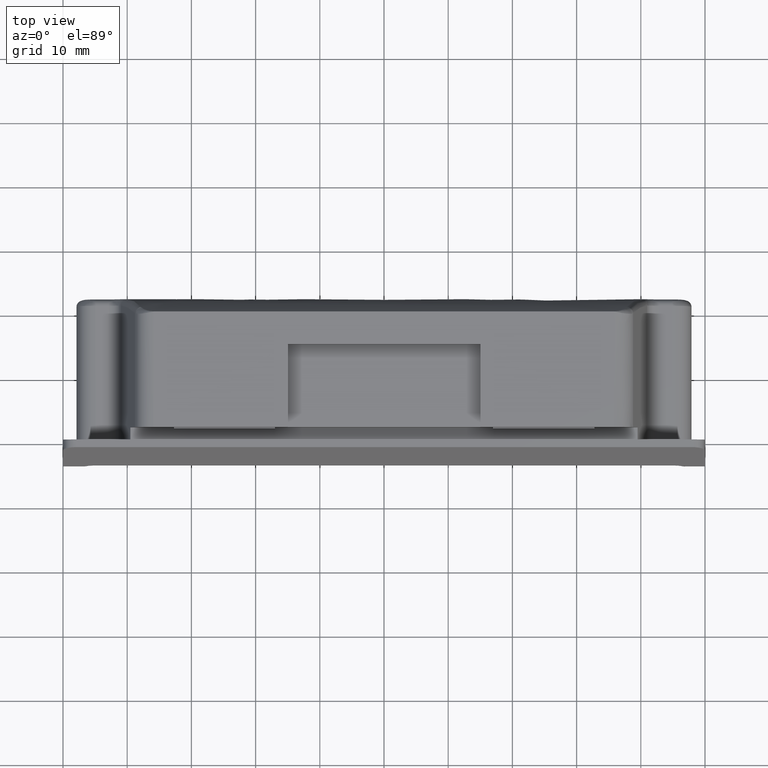
[diagram: clean part render]
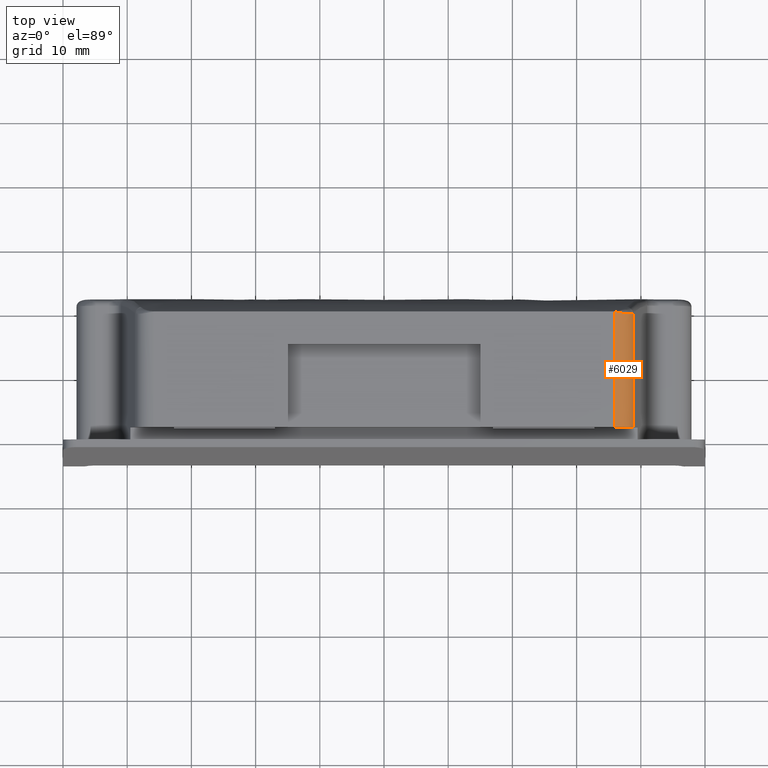
[diagram: same view with one face highlighted and labeled with its STEP entity id]
A machine part, top view. The second image highlights one B-rep face of the part: STEP entity #6029.
In plain terms, the highlighted face is a freeform B-spline surface patch.
Its self-contained STEP definition (entity closure, byte-faithful):
#1514=CARTESIAN_POINT('',(38.808722864421803,19.651020783917350,22.484391787801400));
#1515=VERTEX_POINT('',#1514);
#1671=CARTESIAN_POINT('',(35.899999999999999,19.893540093386449,24.750000000000000));
#1672=VERTEX_POINT('',#1671);
#1689=CARTESIAN_POINT('',(38.808722864421803,19.651020783917350,22.484391787801400));
#1690=CARTESIAN_POINT('',(38.789410564159397,19.638454756821730,22.554629930828391));
#1691=CARTESIAN_POINT('',(38.750065448508863,19.612853881596269,22.697726704539239));
#1692=CARTESIAN_POINT('',(38.669043978054148,19.584758173161529,22.911588349524589));
#1693=CARTESIAN_POINT('',(38.568895539028240,19.563176927994039,23.127292940828941));
#1694=CARTESIAN_POINT('',(38.446678700251702,19.548985422966510,23.342321942416302));
#1695=CARTESIAN_POINT('',(38.301640628712839,19.541938850288538,23.554136962958250));
#1696=CARTESIAN_POINT('',(38.132734922151784,19.542085617233131,23.759806766986859));
#1697=CARTESIAN_POINT('',(37.939369902291801,19.549487222188709,23.956159123211808));
#1698=CARTESIAN_POINT('',(37.666885577466338,19.567412674224411,24.185536706209682));
#1699=CARTESIAN_POINT('',(37.302786274197672,19.604533487863488,24.417927091724309));
#1700=CARTESIAN_POINT('',(36.844624774201179,19.674547412731560,24.610584858304211));
#1701=CARTESIAN_POINT('',(36.372071704110247,19.767658241743199,24.728758671583400));
#1702=CARTESIAN_POINT('',(36.056705175569981,19.851753353170430,24.742948897233440));
#1703=CARTESIAN_POINT('',(35.899999999999999,19.893540093386449,24.750000000000000));
#1704=B_SPLINE_CURVE_WITH_KNOTS('',3,(#1689,#1690,#1691,#1692,#1693,#1694,#1695,#1696,#1697,#1698,#1699,#1700,#1701,#1702,#1703),.UNSPECIFIED.,.F.,.U.,(4,1,1,1,1,1,1,1,1,1,1,1,4),(0.0,0.055334977745694,0.112734426730947,0.172273402632777,0.234019137737138,0.298031889675528,0.364365716455875,0.433069175552164,0.504185948865926,0.631132664525066,0.755847489411964,0.878680967778516,1.0),.UNSPECIFIED.);
#1705=EDGE_CURVE('',#1515,#1672,#1704,.T.);
#5953=CARTESIAN_POINT('',(35.812597633552187,20.343378595721109,24.747815833381100));
#5954=CARTESIAN_POINT('',(35.812560484883612,17.192634752285439,24.749050643386720));
#5955=CARTESIAN_POINT('',(35.812585374541563,10.891147147508420,24.748438844960159));
#5956=CARTESIAN_POINT('',(35.812577820198470,4.589659542731400,24.748784814657579));
#5957=CARTESIAN_POINT('',(35.812579012062493,1.438915781390055,24.748723253058770));
#5958=CARTESIAN_POINT('',(36.052083339261543,20.343378595721109,24.753916421062140));
#5959=CARTESIAN_POINT('',(36.052192477963949,17.192634752285439,24.757188072887971));
#5960=CARTESIAN_POINT('',(36.052122836009580,10.891147147508420,24.755078755083229));
#5961=CARTESIAN_POINT('',(36.052147246216343,4.589659542731401,24.755837340349242));
#5962=CARTESIAN_POINT('',(36.052142923261499,1.438915781390054,24.755706721498001));
#5963=CARTESIAN_POINT('',(36.529346792127527,20.343378595721109,24.710629857725770));
#5964=CARTESIAN_POINT('',(36.529569502910043,17.192634752285439,24.714471702170439));
#5965=CARTESIAN_POINT('',(36.529419456047322,10.891147147508420,24.711558515078782));
#5966=CARTESIAN_POINT('',(36.529464681714288,4.589659542731402,24.712292651213652));
#5967=CARTESIAN_POINT('',(36.529456837655680,1.438915781390053,24.712168826068680));
#5968=CARTESIAN_POINT('',(36.983172826380191,20.343378595721109,24.557151415149889));
#5969=CARTESIAN_POINT('',(36.983322860550992,17.192634752285439,24.560056364134581));
#5970=CARTESIAN_POINT('',(36.983213079667003,10.891147147508409,24.557549258484588));
#5971=CARTESIAN_POINT('',(36.983233856815197,4.589659542731404,24.557907837240901));
#5972=CARTESIAN_POINT('',(36.983230159298550,1.438915781390053,24.557851143763429));
#5973=CARTESIAN_POINT('',(37.631282959415152,20.343378595721109,24.246164626282610));
#5974=CARTESIAN_POINT('',(37.631373968893122,17.192634752285450,24.248686651620581));
#5975=CARTESIAN_POINT('',(37.631302067942201,10.891147147508400,24.246382337464379));
#5976=CARTESIAN_POINT('',(37.631300019291182,4.589659542731407,24.246468094575668));
#5977=CARTESIAN_POINT('',(37.631300571296883,1.438915781390053,24.246464233741790));
#5978=CARTESIAN_POINT('',(38.007316821760440,20.343378595721109,23.938237836787149));
#5979=CARTESIAN_POINT('',(38.007365549211123,17.192634752285450,23.940226828482071));
#5980=CARTESIAN_POINT('',(38.007327581003892,10.891147147508400,23.938442310835129));
#5981=CARTESIAN_POINT('',(38.007312391242230,4.589659542731408,23.938336813760799));
#5982=CARTESIAN_POINT('',(38.007315492668148,1.438915781390053,23.938368952705758));
#5983=CARTESIAN_POINT('',(38.576943015598737,20.343378595721109,23.182586162355889));
#5984=CARTESIAN_POINT('',(38.576918823593758,17.192634752285450,23.183519418213010));
#5985=CARTESIAN_POINT('',(38.576932549887403,10.891147147508400,23.182728950625329));
#5986=CARTESIAN_POINT('',(38.576907576375739,4.589659542731411,23.182532151865399));
#5987=CARTESIAN_POINT('',(38.576912390022258,1.438915781390053,23.182575333225142));
#5988=CARTESIAN_POINT('',(38.766980202290213,20.343378595721109,22.749261533469230));
#5989=CARTESIAN_POINT('',(38.766930615297397,17.192634752285461,22.749611124257608));
#5990=CARTESIAN_POINT('',(38.766958785608928,10.891147147508400,22.749329826359489));
#5991=CARTESIAN_POINT('',(38.766938375935140,4.589659542731412,22.749211549428122));
#5992=CARTESIAN_POINT('',(38.766942154045310,1.438915781390052,22.749233437189279));
#5993=CARTESIAN_POINT('',(38.850972788744421,20.343378595721109,22.290065687411900));
#5994=CARTESIAN_POINT('',(38.850966397642090,17.192634752285461,22.289907086633281));
#5995=CARTESIAN_POINT('',(38.850970485056287,10.891147147508400,22.290058542816642));
#5996=CARTESIAN_POINT('',(38.850974886254200,4.589659542731411,22.290166349982350));
#5997=CARTESIAN_POINT('',(38.850973309377203,1.438915781390052,22.290134053350229));
#5998=B_SPLINE_SURFACE_WITH_KNOTS('',3,3,((#5953,#5958,#5963,#5968,#5973,#5978,#5983,#5988,#5993),(#5954,#5959,#5964,#5969,#5974,#5979,#5984,#5989,#5994),(#5955,#5960,#5965,#5970,#5975,#5980,#5985,#5990,#5995),(#5956,#5961,#5966,#5971,#5976,#5981,#5986,#5991,#5996),(#5957,#5962,#5967,#5972,#5977,#5982,#5987,#5992,#5997)),.UNSPECIFIED.,.F.,.F.,.U.,(4,1,4),(4,1,2,2,4),(0.0,9.452231530307007,18.904462814331058),(0.0,0.500000000000000,1.0,2.0,2.974406938949041),.UNSPECIFIED.);
#5999=CARTESIAN_POINT('',(38.808722864421803,1.900000000000125,22.484391787801400));
#6000=VERTEX_POINT('',#5999);
#6001=CARTESIAN_POINT('',(38.808722864421803,19.651020783917350,22.484391787801400));
#6002=CARTESIAN_POINT('',(38.808722864421803,1.900000000000125,22.484391787801400));
#6003=QUASI_UNIFORM_CURVE('',1,(#6001,#6002),.UNSPECIFIED.,.F.,.U.);
#6004=EDGE_CURVE('',#1515,#6000,#6003,.T.);
#6005=ORIENTED_EDGE('',*,*,#6004,.F.);
#6006=ORIENTED_EDGE('',*,*,#1705,.T.);
#6007=CARTESIAN_POINT('',(35.899999999999999,1.900000000000120,24.750000000000000));
#6008=VERTEX_POINT('',#6007);
#6009=CARTESIAN_POINT('',(35.899999999999999,19.893540093386449,24.750000000000000));
#6010=CARTESIAN_POINT('',(35.899999999999999,1.900000000000120,24.750000000000000));
#6011=QUASI_UNIFORM_CURVE('',1,(#6009,#6010),.UNSPECIFIED.,.F.,.U.);
#6012=EDGE_CURVE('',#1672,#6008,#6011,.T.);
#6013=ORIENTED_EDGE('',*,*,#6012,.T.);
#6014=CARTESIAN_POINT('',(38.808722864421753,1.900000000000125,22.484391787801389));
#6015=CARTESIAN_POINT('',(38.236704097778322,1.900000000000125,24.749999999999996));
#6016=CARTESIAN_POINT('',(35.899999999999999,1.900000000000125,24.750000000000000));
#6024=(BOUNDED_CURVE()B_SPLINE_CURVE(2,(#6014,#6015,#6016),.UNSPECIFIED.,.F.,.U.)CURVE()GEOMETRIC_REPRESENTATION_ITEM()QUASI_UNIFORM_CURVE()RATIONAL_B_SPLINE_CURVE((1.0,0.788922449484252,1.0))REPRESENTATION_ITEM(''));
#6025=EDGE_CURVE('',#6000,#6008,#6024,.T.);
#6026=ORIENTED_EDGE('',*,*,#6025,.F.);
#6027=EDGE_LOOP('',(#6005,#6006,#6013,#6026));
#6028=FACE_OUTER_BOUND('',#6027,.T.);
#6029=ADVANCED_FACE('',(#6028),#5998,.T.);